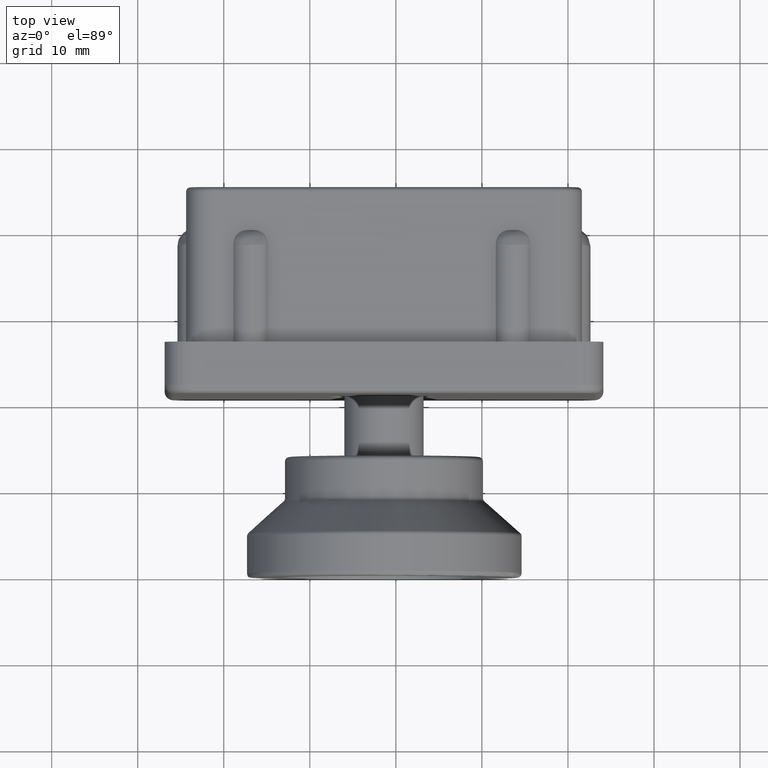
[diagram: clean part render]
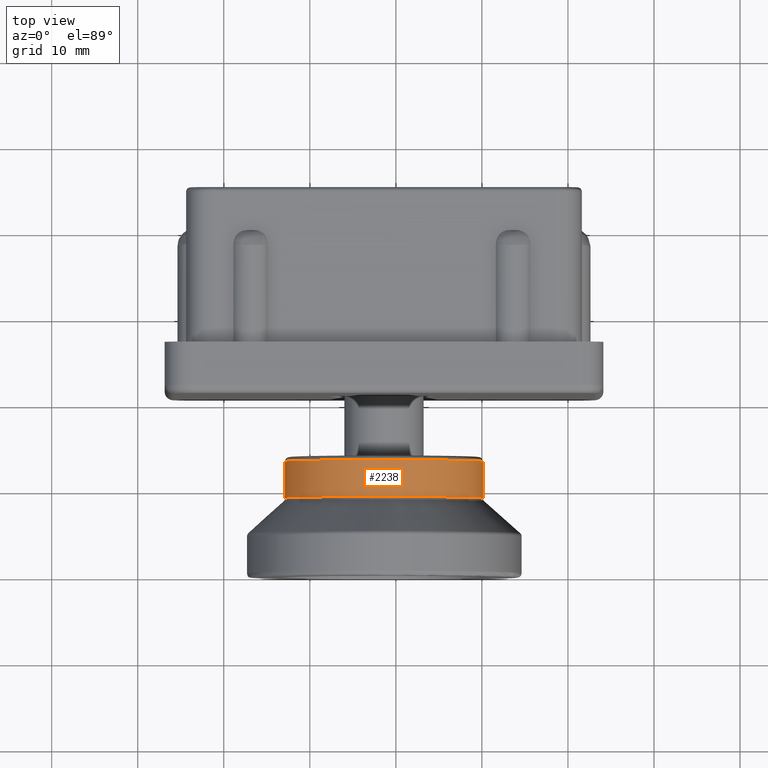
[diagram: same view with one face highlighted and labeled with its STEP entity id]
A machine part, top view. The second image highlights one B-rep face of the part: STEP entity #2238.
In plain terms, the highlighted cylindrical surface (bore or boss wall) has radius 11.5 mm, axis along (0, -1, 0).
Its self-contained STEP definition (entity closure, byte-faithful):
#45=FACE_BOUND('',#431,.T.);
#82=CIRCLE('',#2396,11.5);
#83=CIRCLE('',#2398,11.5);
#286=FACE_OUTER_BOUND('',#430,.T.);
#430=EDGE_LOOP('',(#1602));
#431=EDGE_LOOP('',(#1603));
#997=VERTEX_POINT('',#3583);
#998=VERTEX_POINT('',#3586);
#1240=EDGE_CURVE('',#997,#997,#82,.T.);
#1241=EDGE_CURVE('',#998,#998,#83,.T.);
#1602=ORIENTED_EDGE('',*,*,#1241,.F.);
#1603=ORIENTED_EDGE('',*,*,#1240,.F.);
#2173=CYLINDRICAL_SURFACE('',#2397,11.5);
#2238=ADVANCED_FACE('',(#286,#45),#2173,.T.);
#2396=AXIS2_PLACEMENT_3D('',#3584,#2736,#2737);
#2397=AXIS2_PLACEMENT_3D('',#3585,#2738,#2739);
#2398=AXIS2_PLACEMENT_3D('',#3587,#2740,#2741);
#2736=DIRECTION('center_axis',(6.34413156928661E-17,-1.,0.));
#2737=DIRECTION('ref_axis',(-1.,-6.3355118253066E-17,1.22464679914735E-16));
#2738=DIRECTION('center_axis',(6.34413156928661E-17,-1.,0.));
#2739=DIRECTION('ref_axis',(1.,0.,0.));
#2740=DIRECTION('center_axis',(-6.34413156928661E-17,1.,0.));
#2741=DIRECTION('ref_axis',(-1.,-6.63720286460691E-17,1.22464679914735E-16));
#3583=CARTESIAN_POINT('',(11.5,9.22453303215513,0.));
#3584=CARTESIAN_POINT('Origin',(-5.85216512212225E-16,9.22453303215513,
0.));
#3585=CARTESIAN_POINT('Origin',(-7.2957513046796E-16,11.5,0.));
#3586=CARTESIAN_POINT('',(11.5,13.5,-2.81668763803891E-15));
#3587=CARTESIAN_POINT('Origin',(-8.56457761853692E-16,13.5,0.));